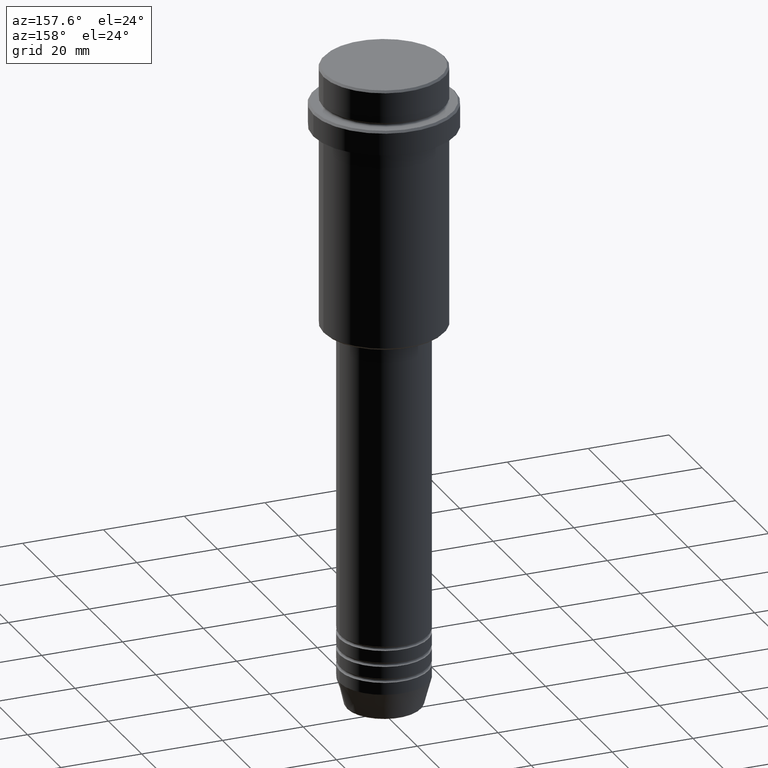
[diagram: clean part render]
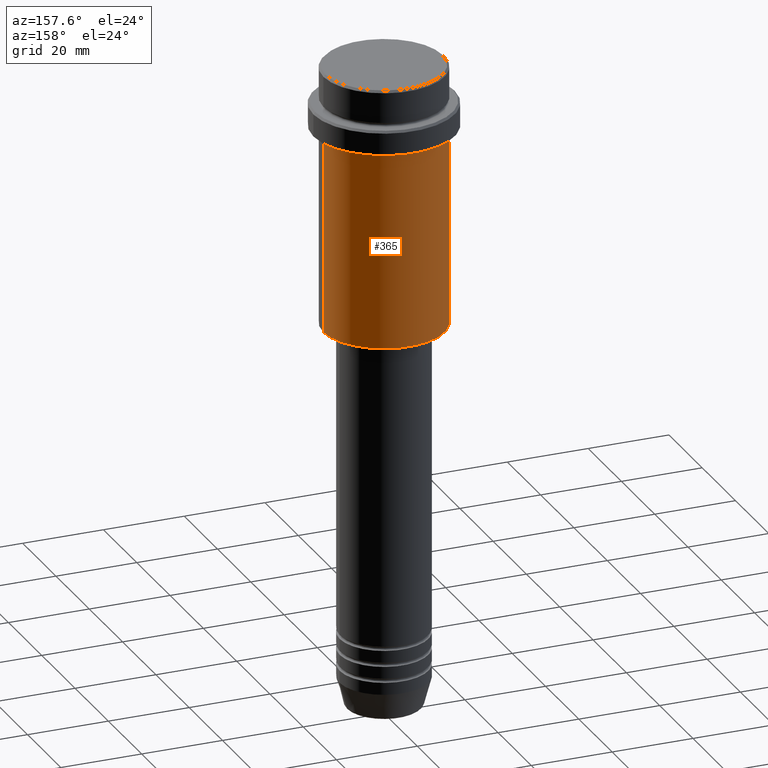
[diagram: same view with one face highlighted and labeled with its STEP entity id]
A machine part, auxiliary view. The second image highlights one B-rep face of the part: STEP entity #365.
In plain terms, the highlighted cylindrical surface (partial cylindrical patch) has radius 15 mm, axis along (-0, -0, 1).
Its self-contained STEP definition (entity closure, byte-faithful):
#24 = ORIENTED_EDGE ( 'NONE', *, *, #867, .F. ) ;
#29 = LINE ( 'NONE', #338, #699 ) ;
#55 = FACE_OUTER_BOUND ( 'NONE', #863, .T. ) ;
#61 = AXIS2_PLACEMENT_3D ( 'NONE', #1306, #758, #1289 ) ;
#82 = AXIS2_PLACEMENT_3D ( 'NONE', #1295, #986, #436 ) ;
#99 = DIRECTION ( 'NONE',  ( 1.000000000000000000, 0.000000000000000000, 0.000000000000000000 ) ) ;
#133 = CIRCLE ( 'NONE', #61, 15.00000000000000000 ) ;
#212 = VERTEX_POINT ( 'NONE', #283 ) ;
#241 = VERTEX_POINT ( 'NONE', #977 ) ;
#283 = CARTESIAN_POINT ( 'NONE',  ( -15.00000000000000000, 1.836970198721029589E-15, -64.50000000000000000 ) ) ;
#321 = CYLINDRICAL_SURFACE ( 'NONE', #563, 15.00000000000000000 ) ;
#338 = CARTESIAN_POINT ( 'NONE',  ( -15.00000000000000000, 1.836970198721029589E-15, 0.000000000000000000 ) ) ;
#365 = ADVANCED_FACE ( 'NONE', ( #55 ), #321, .T. ) ;
#368 = ORIENTED_EDGE ( 'NONE', *, *, #1165, .T. ) ;
#419 = CARTESIAN_POINT ( 'NONE',  ( -15.00000000000000355, 1.836970198721029983E-15, -16.00000000000000000 ) ) ;
#420 = CARTESIAN_POINT ( 'NONE',  ( 0.000000000000000000, 0.000000000000000000, 0.000000000000000000 ) ) ;
#434 = VERTEX_POINT ( 'NONE', #419 ) ;
#436 = DIRECTION ( 'NONE',  ( 1.000000000000000000, 0.000000000000000000, 0.000000000000000000 ) ) ;
#471 = DIRECTION ( 'NONE',  ( -0.000000000000000000, -0.000000000000000000, 1.000000000000000000 ) ) ;
#500 = ORIENTED_EDGE ( 'NONE', *, *, #1392, .F. ) ;
#526 = DIRECTION ( 'NONE',  ( -0.000000000000000000, -0.000000000000000000, 1.000000000000000000 ) ) ;
#563 = AXIS2_PLACEMENT_3D ( 'NONE', #420, #1285, #99 ) ;
#620 = VERTEX_POINT ( 'NONE', #1396 ) ;
#698 = CIRCLE ( 'NONE', #82, 15.00000000000000178 ) ;
#699 = VECTOR ( 'NONE', #471, 1000.000000000000000 ) ;
#758 = DIRECTION ( 'NONE',  ( -0.000000000000000000, -0.000000000000000000, 1.000000000000000000 ) ) ;
#863 = EDGE_LOOP ( 'NONE', ( #1061, #368, #24, #500 ) ) ;
#867 = EDGE_CURVE ( 'NONE', #620, #434, #698, .T. ) ;
#977 = CARTESIAN_POINT ( 'NONE',  ( 15.00000000000000000, 0.000000000000000000, -64.50000000000000000 ) ) ;
#986 = DIRECTION ( 'NONE',  ( -0.000000000000000000, -0.000000000000000000, 1.000000000000000000 ) ) ;
#999 = EDGE_CURVE ( 'NONE', #241, #212, #133, .T. ) ;
#1061 = ORIENTED_EDGE ( 'NONE', *, *, #999, .T. ) ;
#1068 = LINE ( 'NONE', #1402, #1300 ) ;
#1165 = EDGE_CURVE ( 'NONE', #212, #434, #29, .T. ) ;
#1285 = DIRECTION ( 'NONE',  ( -0.000000000000000000, -0.000000000000000000, 1.000000000000000000 ) ) ;
#1289 = DIRECTION ( 'NONE',  ( -1.000000000000000000, 0.000000000000000000, 0.000000000000000000 ) ) ;
#1295 = CARTESIAN_POINT ( 'NONE',  ( 0.000000000000000000, 0.000000000000000000, -16.00000000000000000 ) ) ;
#1300 = VECTOR ( 'NONE', #526, 1000.000000000000000 ) ;
#1306 = CARTESIAN_POINT ( 'NONE',  ( 0.000000000000000000, 0.000000000000000000, -64.50000000000000000 ) ) ;
#1392 = EDGE_CURVE ( 'NONE', #241, #620, #1068, .T. ) ;
#1396 = CARTESIAN_POINT ( 'NONE',  ( 15.00000000000000178, 0.000000000000000000, -16.00000000000000000 ) ) ;
#1402 = CARTESIAN_POINT ( 'NONE',  ( 15.00000000000000000, 0.000000000000000000, 0.000000000000000000 ) ) ;